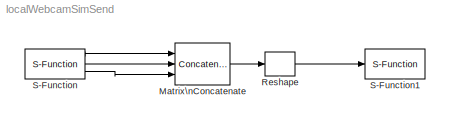
MODEL localWebcamSimSend
KIND model
BLOCK [Concatenate] Matrix\nConcatenate
  ConcatenateDimension = 2
  Mode = Multidimensional array
  NumInputs = 3
  Ports = [3, 1]
  SID = 15
BLOCK [Reshape] Reshape
  Ports = [1, 1]
  SID = 14
BLOCK [S-Function] S-Function
  EnableBusSupport = off
  FunctionName = localPicOut
  Parameters = 320 240 80 60
  Ports = [0, 3]
  SID = 3
BLOCK [S-Function] S-Function1
  EnableBusSupport = off
  FunctionName = toIp
  Parameters = '153.104.47.61','6667'
  Ports = [1]
  SID = 12
LINE Matrix\nConcatenate:1 -> Reshape:1
LINE Reshape:1 -> S-Function1:1
LINE S-Function:1 -> Matrix\nConcatenate:1
LINE S-Function:2 -> Matrix\nConcatenate:2
LINE S-Function:3 -> Matrix\nConcatenate:3
